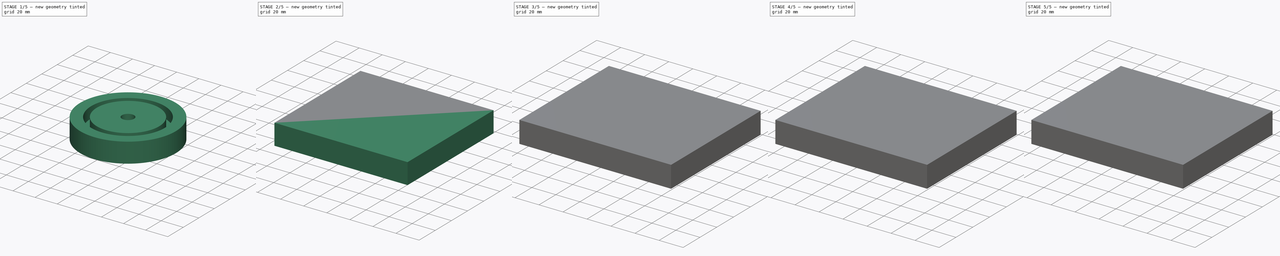
[diagram: build sequence overview — one tinted view per stage of 5, left to right]
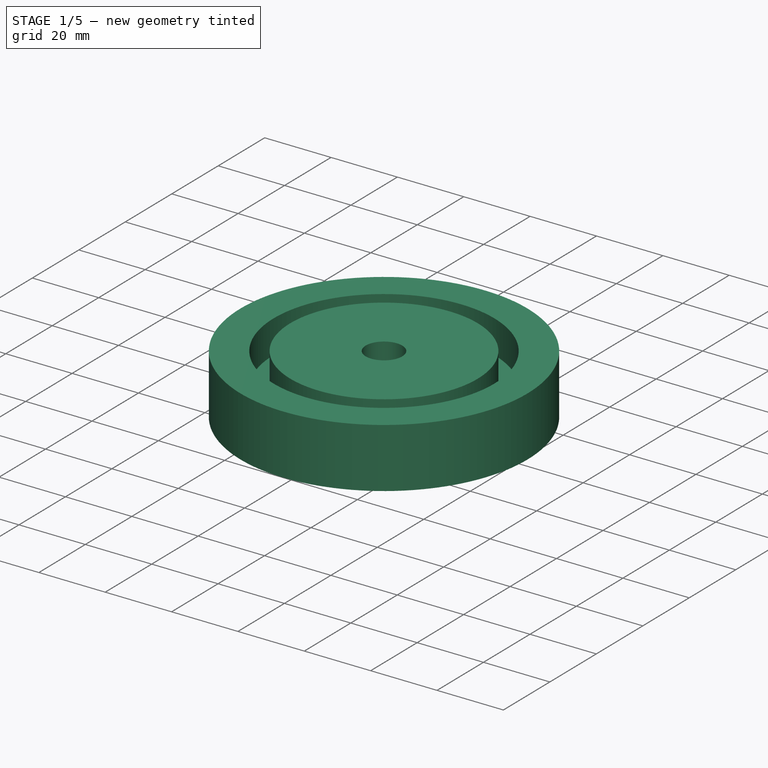
[diagram: stage 1 of 5 — iso view after this stage's code; geometry added in this stage tinted green]
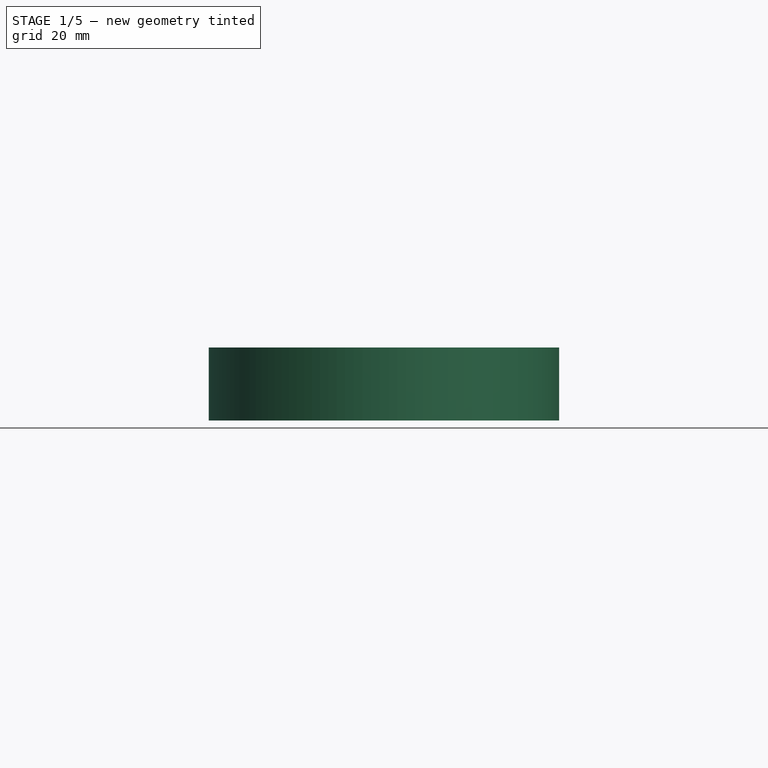
[diagram: stage 1 of 5 — front view after this stage's code; geometry added in this stage tinted green]
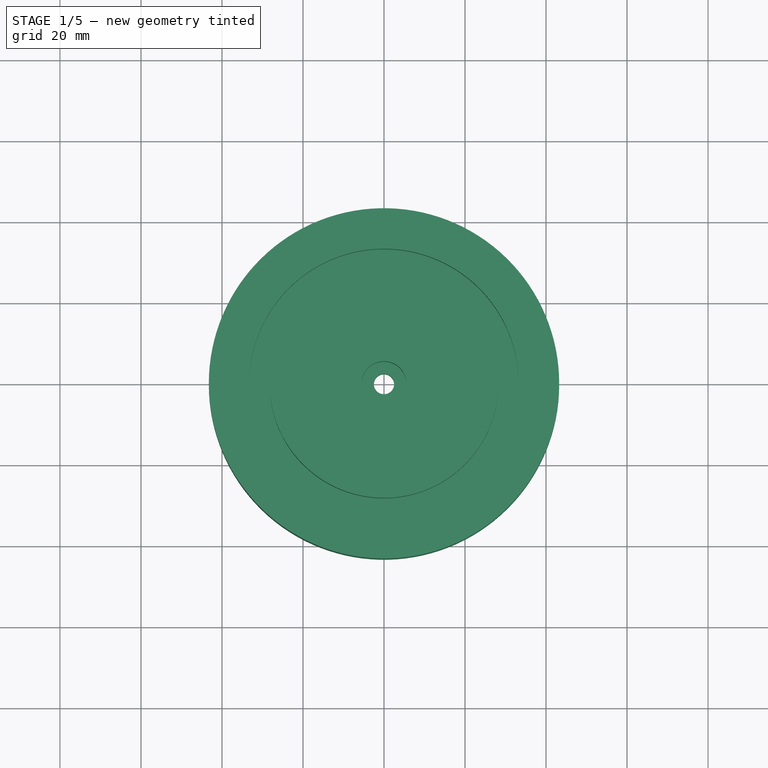
[diagram: stage 1 of 5 — top view after this stage's code; geometry added in this stage tinted green]
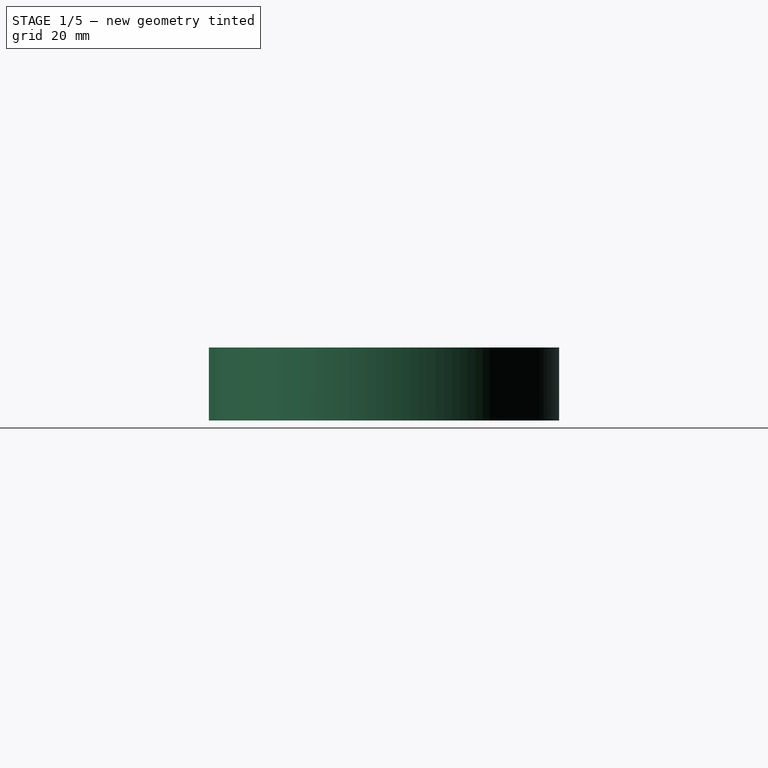
[diagram: stage 1 of 5 — right view after this stage's code; geometry added in this stage tinted green]
FCSTD DOCUMENT  (FreeCAD 0.19R20406 (Git))
Label: LampRim
License: Creative Commons Attribution-ShareAlike
LicenseURL: http://creativecommons.org/licenses/by-sa/4.0/
objects: Path::FeaturePython×20, Sketcher::SketchObject×9, Part::FeaturePython×8, PartDesign::Pocket×5, App::FeaturePython×4, App::DocumentObjectGroup×4, Path::FeatureCompoundPython×4, PartDesign::Pad×3, PartDesign::Body×3, PartDesign::PolarPattern×1, PartDesign::Hole×1
note: 42 computed .brp shape members not serialized (recipe doc carries the construction recipe); baked Part::Feature solids carry a one-line shape summary decoded from their .brp

FEATURE [Path::FeaturePython] T5__4FluteMetalMill4mm  label="T5: 4FluteMetalMill4mm"  # Path/CAM operation (typed FeaturePython)
  HorizFeed = 13.33
  HorizRapid = 33.33
  SpindleDir = 0
  SpindleSpeed = 18000
  ToolNumber = 5
  VertFeed = 3.33
  VertRapid = 33.33
  expr: VertRapid = SetupSheet001.VertRapid
  expr: HorizRapid = SetupSheet001.HorizRapid
FEATURE [Path::FeaturePython] Adaptive002  # Path/CAM operation (typed FeaturePython)
  Active = true
  Base = -> [Clone001]
  ClearanceHeight = 7
  CoolantMode = None
  EnableRotation = 0
  FinalDepth = -1
  FinishDepth = 0
  ForceInsideOut = false
  HelixAngle = 5
  HelixDiameterLimit = 0
  KeepToolDownRatio = 3
  LiftDistance = 0
  OpFinalDepth = 0
  OpStartDepth = 2
  OpStockZMax = 2
  OpStockZMin = -1
  OpToolDiameter = 4
  OperationType = 0
  SafeHeight = 5
  Side = 1
  StartDepth = 0
  StepDown = 0.5
  StepOver = 20
  StockToLeave = 0
  StopProcessing = false
  Stopped = false
  Tolerance = 0.1
  ToolController = -> T5__4FluteMetalMill4mm
  UseHelixArcs = false
  expr: StepDown = 0.5mm
  expr: FinalDepth = -1mm
  expr: StartDepth = 0mm
  expr: ClearanceHeight = OpStockZMax + SetupSheet001.ClearanceHeightOffset
  expr: SafeHeight = OpStockZMax + SetupSheet001.SafeHeightOffset
FEATURE [Path::FeatureCompoundPython] Operations001  # Path/CAM operation (typed FeaturePython)
  Group = -> [Adaptive002]
  UsePlacements = false
FEATURE [Path::FeaturePython] Job001  # Path/CAM operation (typed FeaturePython)
  Fixtures = G54
  GeometryTolerance = 0.01
  Model = -> Model001
  Operations = -> Operations001
  OrderOutputBy = 0
  PostProcessor = 1
  PostProcessorOutputFile = gcode/metal_lid_hole.ngc
  SetupSheet = -> SetupSheet001
  SplitOutput = false
  Stock = -> Stock002
  ToolController = -> [T5__4FluteMetalMill4mm]
FEATURE [Sketcher::SketchObject] Sketch005
  MapMode = 5
  Support = -> [XY_Plane002]
  expr: Constraints[1] = <<Outline_Plan>>.Constraints.OuterDiameter
  sketch-geometry (1):
    g0: Circle CenterX=0 CenterY=0 CenterZ=0 NormalX=0 NormalY=0 NormalZ=1 AngleXU=0 Radius=43.25
  constraints (2):
    c: Coincident(g0,g-1)
    c: Diameter(g0) = 86.5
FEATURE [PartDesign::Pad] Pad002
  Length = 18
  Length2 = 100
  Profile = -> Sketch005
  Type = 0
FEATURE [Sketcher::SketchObject] Sketch006
  MapMode = 5
  Placement = pos=(0,0,18) rot=(0,0,1;0rad)
  Support = -> [Pad002]
  expr: Constraints[2] = <<Outline_Plan>>.Constraints.InnerDiameter
  sketch-geometry (3):
    g0: Circle CenterX=0 CenterY=0 CenterZ=0 NormalX=0 NormalY=0 NormalZ=1 AngleXU=0 Radius=33.25
    g1: Circle CenterX=0 CenterY=0 CenterZ=0 NormalX=0 NormalY=0 NormalZ=1 AngleXU=0 Radius=28.25
    g2: LineSegment [constr] StartX=-33.25 StartY=0 StartZ=0 EndX=-28.25 EndY=0 EndZ=0
  constraints (8):
    c: Coincident(g0,g-1)
    c: Coincident(g1,g0)
    c: Diameter(g0) = 66.5
    c: PointOnObject(g2,g0)
    c: PointOnObject(g2,g1)
    c: Horizontal(g2)
    c: PointOnObject(g2,g-1)
    c: DistanceX(g2,g2) = 5
FEATURE [PartDesign::Pocket] Pocket003
  BaseFeature = -> Pad002
  Length = 10
  Length2 = 100
  Profile = -> Sketch006
  Type = 0
FEATURE [Sketcher::SketchObject] Sketch007
  MapMode = 5
  Placement = pos=(0,0,18) rot=(0,0,1;0rad)
  Support = -> [Pocket003]
  sketch-geometry (1):
    g0: Circle CenterX=0 CenterY=0 CenterZ=0 NormalX=0 NormalY=0 NormalZ=1 AngleXU=0 Radius=2.5
  constraints (2):
    c: Coincident(g0,g-1)
    c: Diameter(g0) = 5
FEATURE [PartDesign::Hole] Hole
  BaseFeature = -> Pocket003
  Depth = 25
  DepthType = 1
  Diameter = 5
  DrillPoint = 0
  DrillPointAngle = 118
  HoleCutCountersinkAngle = 90
  HoleCutDepth = 10
  HoleCutDiameter = 11
  HoleCutType = 1
  ModelActualThread = false
  Profile = -> Sketch007
  Tapered = false
  TaperedAngle = 90
  ThreadAngle = 0
  ThreadClass = 0
  ThreadCutOffInner = 0
  ThreadCutOffOuter = 0
  ThreadDirection = 0
  ThreadFit = 0
  ThreadPitch = 0
  ThreadSize = 0
  ThreadType = 0
  Threaded = false
FEATURE [Sketcher::SketchObject] Sketch008
  MapMode = 5
  Placement = pos=(0,0,0) rot=(1,0,0;3.14159rad)
  Support = -> [Hole]
  sketch-geometry (5):
    g0: LineSegment StartX=-20 StartY=20 StartZ=0 EndX=20 EndY=20 EndZ=0
    g1: LineSegment StartX=20 StartY=20 StartZ=0 EndX=20 EndY=-20 EndZ=0
    g2: LineSegment StartX=20 StartY=-20 StartZ=0 EndX=-20 EndY=-20 EndZ=0
    g3: LineSegment StartX=-20 StartY=-20 StartZ=0 EndX=-20 EndY=20 EndZ=0
    g4: Circle CenterX=0 CenterY=0 CenterZ=0 NormalX=0 NormalY=0 NormalZ=1 AngleXU=0 Radius=10
  constraints (12):
    c: Coincident(g0,g1)
    c: Coincident(g1,g2)
    c: Coincident(g2,g3)
    c: Coincident(g3,g0)
    c: Horizontal(g2)
    c: Vertical(g3)
    c: Symmetric(g0,g0,g-2)
    c: Symmetric(g1,g0,g-1)
    c: Equal(g0,g1)
    c: DistanceX(g0,g0) = 40
    c: Coincident(g4,g-1)
    c: Diameter(g4) = 20
FEATURE [PartDesign::Pocket] Pocket004
  BaseFeature = -> Hole
  Length = 1
  Length2 = 100
  Profile = -> Sketch008
  Type = 0
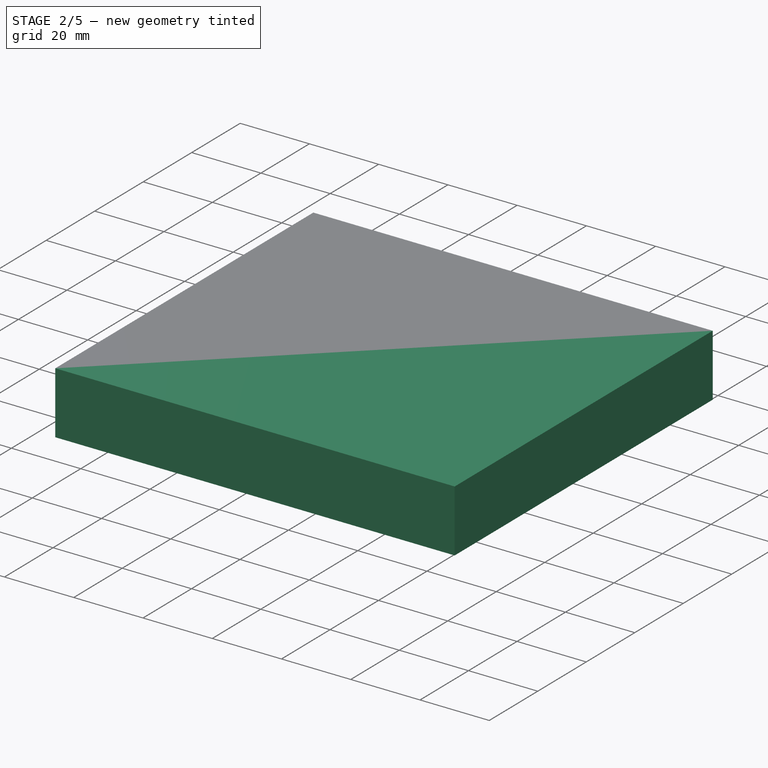
[diagram: stage 2 of 5 — iso view after this stage's code; geometry added in this stage tinted green]
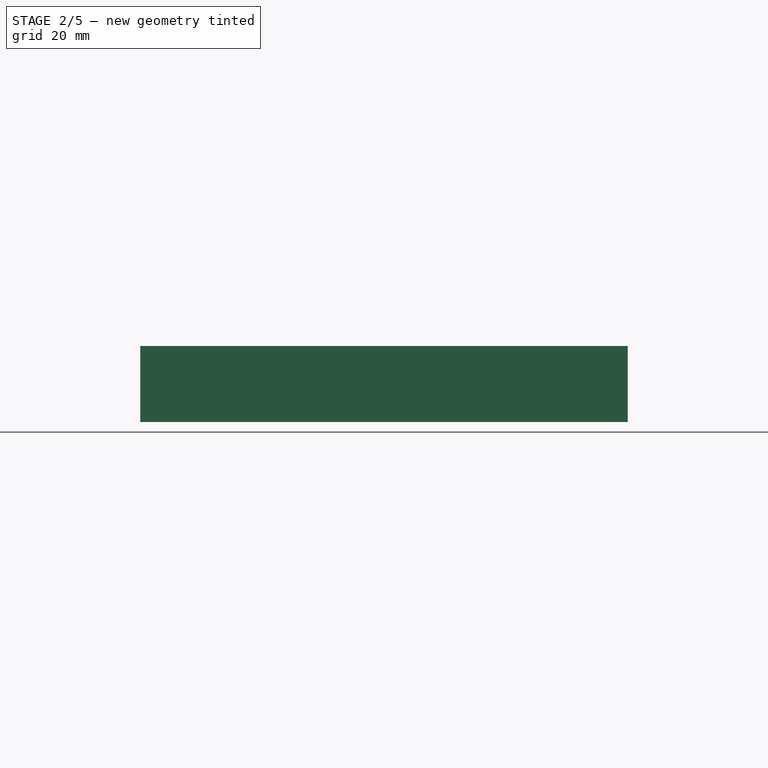
[diagram: stage 2 of 5 — front view after this stage's code; geometry added in this stage tinted green]
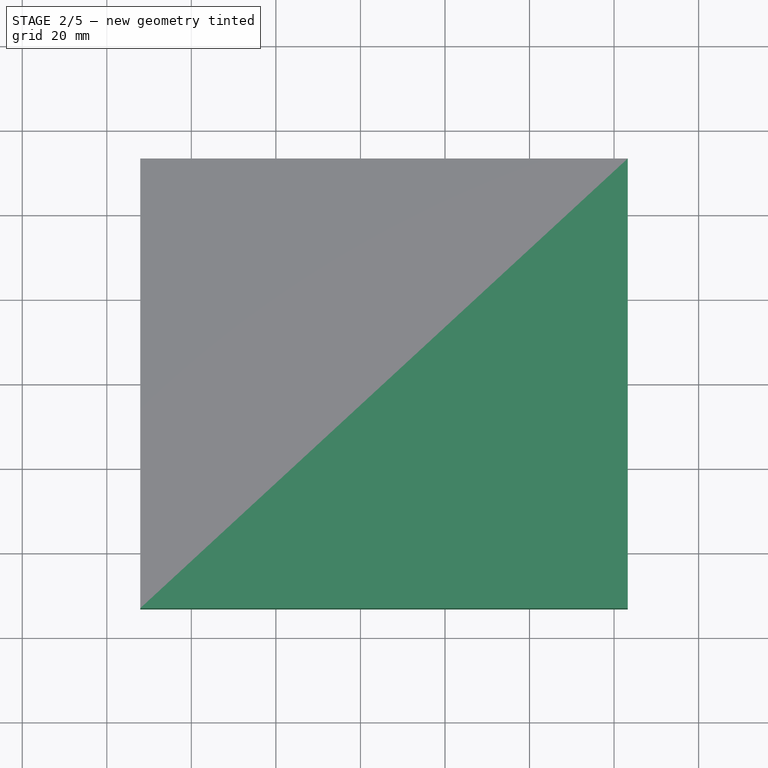
[diagram: stage 2 of 5 — top view after this stage's code; geometry added in this stage tinted green]
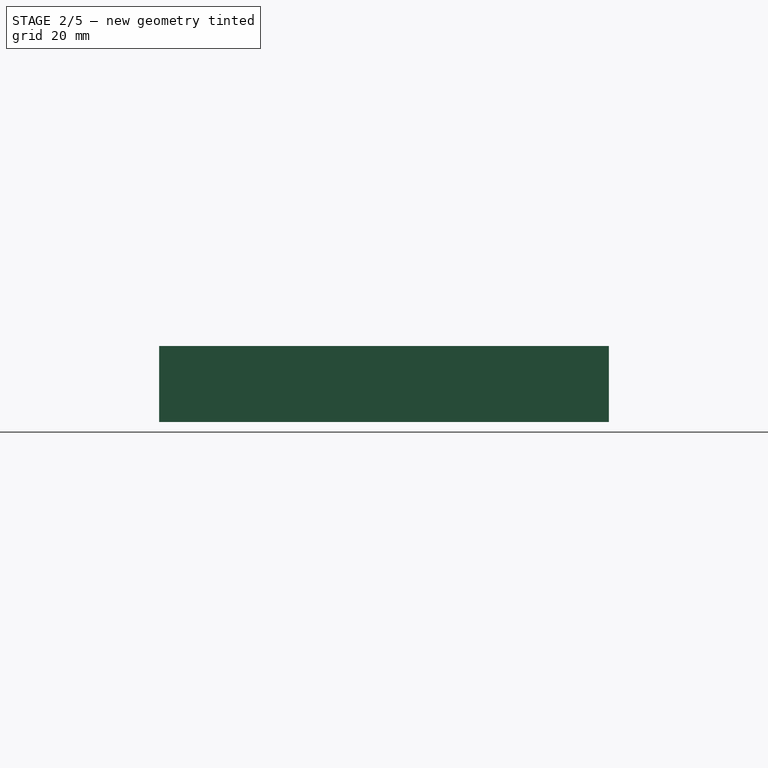
[diagram: stage 2 of 5 — right view after this stage's code; geometry added in this stage tinted green]
FEATURE [PartDesign::Body] Body002
  Group = -> [Sketch005,Pad002,Sketch006,Pocket003,Sketch007,Hole,Sketch008,Pocket004]
  Origin = -> Origin002
  Tip = -> Pocket004
FEATURE [App::FeaturePython] SetupSheet002  # Path/CAM operation (typed FeaturePython)
  ClearanceHeightExpression = OpStockZMax+SetupSheet002.ClearanceHeightOffset
  ClearanceHeightOffset = 5
  CoolantMode = 0
  CoolantModes = None | Flood | Mist
  FinalDepthExpression = OpFinalDepth
  HorizRapid = 66.67
  SafeHeightExpression = OpStockZMax+SetupSheet002.SafeHeightOffset
  SafeHeightOffset = 3
  StartDepthExpression = OpStartDepth
  StepDownExpression = OpToolDiameter
  VertRapid = 16.66
FEATURE [Part::FeaturePython] Clone002  label="Model-Body002"  # Draft clone (typed FeaturePython)
  AttacherType = Attacher::AttachEngine3D
  Fuse = false
  Objects = -> [Body002]
  PathResource = Model
  Scale = (1,1,1)
FEATURE [Path::FeaturePython] Adaptive003  # Path/CAM operation (typed FeaturePython)
  Active = false
  Base = -> [Clone002]
  ClearanceHeight = 23
  CoolantMode = None
  EnableRotation = 0
  FinalDepth = 8
  FinishDepth = 0
  ForceInsideOut = false
  HelixAngle = 5
  HelixDiameterLimit = 0
  KeepToolDownRatio = 3
  LiftDistance = 0
  OpFinalDepth = 8
  OpStartDepth = 18
  OpStockZMax = 18
  OpStockZMin = 0
  OpToolDiameter = 3
  OperationType = 0
  SafeHeight = 21
  Side = 1
  StartDepth = 18
  StepDown = 3
  StepOver = 20
  StockToLeave = 0
  StopProcessing = false
  Stopped = false
  Tolerance = 0.1
  ToolController = -> T6__2FluteWoodMill001001
  UseHelixArcs = false
  expr: StartDepth = OpStartDepth
  expr: FinalDepth = OpFinalDepth
  expr: StepDown = OpToolDiameter
  expr: SafeHeight = OpStockZMax + SetupSheet002.SafeHeightOffset
  expr: ClearanceHeight = OpStockZMax + SetupSheet002.ClearanceHeightOffset
FEATURE [Path::FeaturePython] Helix  # Path/CAM operation (typed FeaturePython)
  Active = true
  Base = -> [Clone002]
  ClearanceHeight = 23
  CoolantMode = None
  Direction = 0
  Disabled = Clone002.Face1 | Clone002.Face8 | Clone002.Face11 | Clone002.Face12 | Clone002.Face16
  EnableRotation = 0
  FinalDepth = 0
  OpFinalDepth = 0
  OpStartDepth = 18
  OpStockZMax = 18
  OpStockZMin = 0
  OpToolDiameter = 3
  SafeHeight = 21
  StartDepth = 18
  StartRadius = 0
  StartSide = 0
  StepDown = 0.5
  StepOver = 100
  ToolController = -> T6__2FluteWoodMill001001
  expr: StartDepth = OpStartDepth
  expr: FinalDepth = OpFinalDepth
  expr: StepDown = OpToolDiameter / 6
  expr: SafeHeight = OpStockZMax + SetupSheet002.SafeHeightOffset
  expr: ClearanceHeight = OpStockZMax + SetupSheet002.ClearanceHeightOffset
FEATURE [Path::FeaturePython] Helix001  # Path/CAM operation (typed FeaturePython)
  Active = true
  Base = -> [Clone002]
  ClearanceHeight = 23
  CoolantMode = None
  Direction = 0
  EnableRotation = 0
  FinalDepth = 8
  OpFinalDepth = 8
  OpStartDepth = 18
  OpStockZMax = 18
  OpStockZMin = 0
  OpToolDiameter = 3
  SafeHeight = 21
  StartDepth = 18
  StartRadius = 0
  StartSide = 0
  StepDown = 0.5
  StepOver = 100
  ToolController = -> T6__2FluteWoodMill001001
  expr: StartDepth = OpStartDepth
  expr: FinalDepth = OpFinalDepth
  expr: StepDown = OpToolDiameter / 6
  expr: SafeHeight = OpStockZMax + SetupSheet002.SafeHeightOffset
  expr: ClearanceHeight = OpStockZMax + SetupSheet002.ClearanceHeightOffset
FEATURE [Path::FeaturePython] Pocket_Shape001  # Path/CAM operation (typed FeaturePython)
  Active = true
  AreaParams:
    Tolerance = 1e-07
    FitArcs = True
    Simplify = False
    CleanDistance = 0.0
    Accuracy = 0.01
    Unit = 1.0
    MinArcPoints = 4
    MaxArcPoints = 100
    ClipperScale = 10000000.0
    Fill = 0
    Coplanar = 0
    Reorient = True
    Outline = False
    Explode = False
    OpenMode = 0
    Deflection = 0.01
    SubjectFill = 0
    ClipFill = 0
    Offset = 0.0
    ExtraPass = 0
    Stepover = 0.0
    LastStepover = 0.0
    JoinType = 0
    EndType = 0
    MiterLimit = 2.0
    RoundPrecision = 0.0
    PocketMode = 2
    ToolRadius = 1.5
    PocketExtraOffset = 0.0
    PocketStepover = 3.0
    PocketLastStepover = 0.0
    FromCenter = True
    Angle = 45.0
    AngleShift = 0.0
    Shift = 0.0
    Thicken = False
    SectionCount = -1
    Stepdown = 1.0
    SectionOffset = 0.0
    SectionTolerance = 1e-06
    SectionMode = 2
    Project = False
  AttemptInverseAngle = true
  Base = -> [Clone002]
  ClearanceHeight = 23
  CoolantMode = None
  CutMode = 0
  EnableRotation = 0
  ExtensionCorners = true
  ExtensionLengthDefault = 1.5
  ExtraOffset = 0
  FinalDepth = 8
  FinishDepth = 0
  InverseAngle = false
  KeepToolDown = false
  LimitDepthToFace = true
  MinTravel = false
  OffsetPattern = 1
  OpFinalDepth = 8
  OpStartDepth = 18
  OpStockZMax = 18
  OpStockZMin = 0
  OpToolDiameter = 3
  PathParams = {'orientation': 1, 'feedrate': 33.33, 'feedrate_v': 16.66, 'verbose': True, 'resume_height': 21.0, 'retraction': 23.0, 'return_end': True, 'preamble': False}
  ReverseDirection = false
  SafeHeight = 21
  StartAt = 0
  StartDepth = 18
  StartPoint = (0,0,0)
  StepDown = 0.5
  StepOver = 100
  ToolController = -> T6__2FluteWoodMill001001
  UseOutline = false
  UseStartPoint = false
  ZigZagAngle = 45
  expr: StartDepth = OpStartDepth
  expr: FinalDepth = OpFinalDepth
  expr: StepDown = OpToolDiameter / 6
  expr: SafeHeight = OpStockZMax + SetupSheet002.SafeHeightOffset
  expr: ClearanceHeight = OpStockZMax + SetupSheet002.ClearanceHeightOffset
  expr: ExtensionLengthDefault = OpToolDiameter / 2
FEATURE [Path::FeatureCompoundPython] Operations002  # Path/CAM operation (typed FeaturePython)
  Group = -> [Helix,Helix001,Adaptive003,Pocket_Shape001]
  UsePlacements = false
FEATURE [Path::FeaturePython] Job002  label="LidHolder_Front_Job"  # Path/CAM operation (typed FeaturePython)
  Fixtures = G54
  GeometryTolerance = 0.01
  Model = -> Model002
  Operations = -> Operations002
  OrderOutputBy = 2
  PostProcessor = 1
  PostProcessorOutputFile = gcode/lid_holder_front.nc
  SetupSheet = -> SetupSheet002
  SplitOutput = false
  Stock = -> Stock003
  ToolController = -> [T6__2FluteWoodMill001001]
FEATURE [App::FeaturePython] SetupSheet003  # Path/CAM operation (typed FeaturePython)
  ClearanceHeightExpression = OpStockZMax+SetupSheet003.ClearanceHeightOffset
  ClearanceHeightOffset = 5
  CoolantMode = 0
  CoolantModes = None | Flood | Mist
  FinalDepthExpression = OpFinalDepth
  HorizRapid = 66.67
  SafeHeightExpression = OpStockZMax+SetupSheet003.SafeHeightOffset
  SafeHeightOffset = 3
  StartDepthExpression = OpStartDepth
  StepDownExpression = OpToolDiameter
  VertRapid = 33.33
FEATURE [Part::FeaturePython] Clone003  label="Model-Model-Body002"  # Draft clone (typed FeaturePython)
  AttacherType = Attacher::AttachEngine3D
  Fuse = false
  Objects = -> [Clone002]
  PathResource = Model
  Placement = pos=(0,0,18) rot=(1,0,0;3.14159rad)
  Scale = (1,1,1)
FEATURE [App::DocumentObjectGroup] Model003
  Group = -> [Clone003]
FEATURE [Path::FeaturePython] T6__2FluteWoodMill001002  label="T6: 2FluteWoodMill002"  # Path/CAM operation (typed FeaturePython)
  HorizFeed = 33.33
  HorizRapid = 66.67
  SpindleDir = 0
  SpindleSpeed = 12000
  ToolNumber = 6
  VertFeed = 16.66
  VertRapid = 33.33
  expr: VertRapid = SetupSheet003.VertRapid
  expr: HorizRapid = SetupSheet003.HorizRapid
FEATURE [Part::FeaturePython] Stock004  # WARN: FeaturePython — macro-defined, semantics opaque (R4)
  Base = -> Model003
  ExtXneg = 9
  ExtXpos = 20
  ExtYneg = 10
  ExtYpos = 10
  ExtZneg = 0
  ExtZpos = 0
  Placement = pos=(-43.0942,-43.211,0) rot=(0,0,1;0rad)
  StockType = FromBase
FEATURE [Path::FeaturePython] Adaptive004  # Path/CAM operation (typed FeaturePython)
  Active = true
  Base = -> [Clone003]
  ClearanceHeight = 23
  CoolantMode = None
  EnableRotation = 0
  FinalDepth = 17
  FinishDepth = 0
  ForceInsideOut = false
  HelixAngle = 5
  HelixDiameterLimit = 0
  KeepToolDownRatio = 3
  LiftDistance = 0
  OpFinalDepth = 17
  OpStartDepth = 18
  OpStockZMax = 18
  OpStockZMin = 0
  OpToolDiameter = 3
  OperationType = 0
  SafeHeight = 21
  Side = 1
  StartDepth = 18
  StepDown = 3
  StepOver = 20
  StockToLeave = 0
  StopProcessing = false
  Stopped = false
  Tolerance = 0.1
  ToolController = -> T6__2FluteWoodMill001002
  UseHelixArcs = false
  expr: StartDepth = OpStartDepth
  expr: FinalDepth = OpFinalDepth
  expr: StepDown = OpToolDiameter
  expr: SafeHeight = OpStockZMax + SetupSheet003.SafeHeightOffset
  expr: ClearanceHeight = OpStockZMax + SetupSheet003.ClearanceHeightOffset
FEATURE [Path::FeatureCompoundPython] Operations003  # Path/CAM operation (typed FeaturePython)
  Group = -> [Adaptive004]
  UsePlacements = false
FEATURE [Path::FeaturePython] Job003  # Path/CAM operation (typed FeaturePython)
  Fixtures = G54
  GeometryTolerance = 0.01
  Model = -> Model003
  Operations = -> Operations003
  OrderOutputBy = 0
  PostProcessor = 1
  PostProcessorOutputFile = gcode/left_leg.nc
  SetupSheet = -> SetupSheet003
  SplitOutput = false
  Stock = -> Stock004
  ToolController = -> [T6__2FluteWoodMill001002]
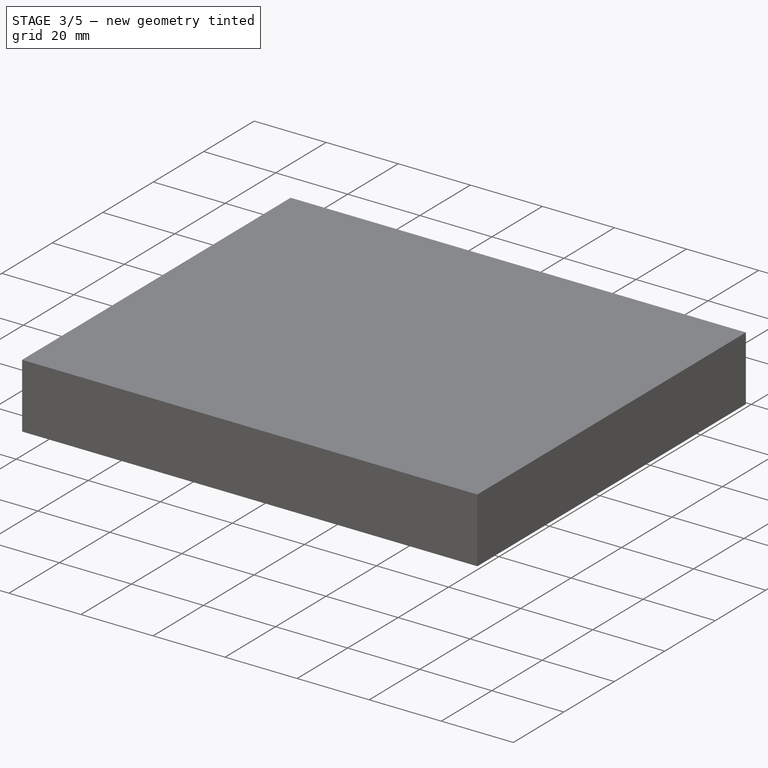
[diagram: stage 3 of 5 — iso view after this stage's code; geometry added in this stage tinted green]
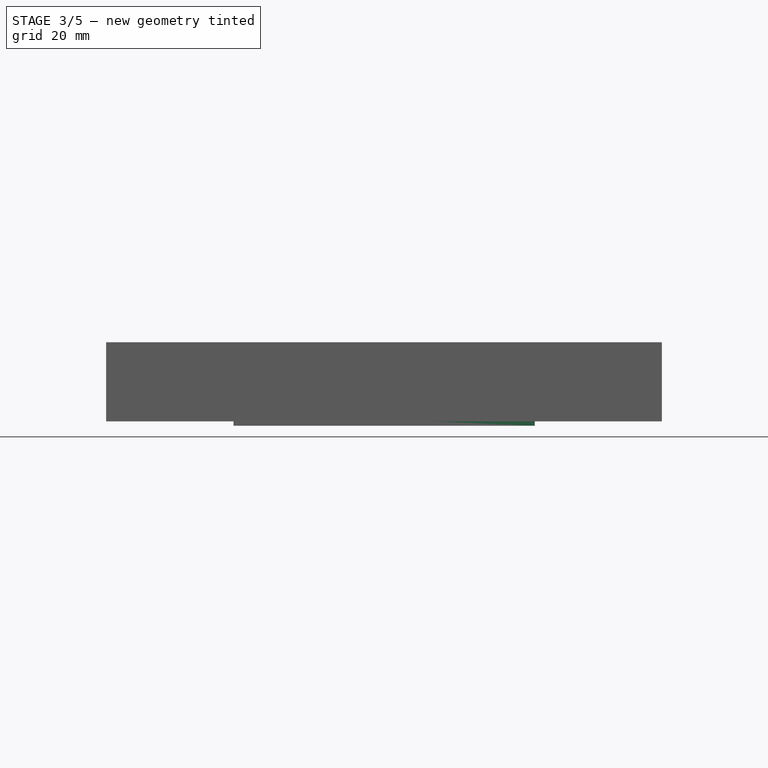
[diagram: stage 3 of 5 — front view after this stage's code; geometry added in this stage tinted green]
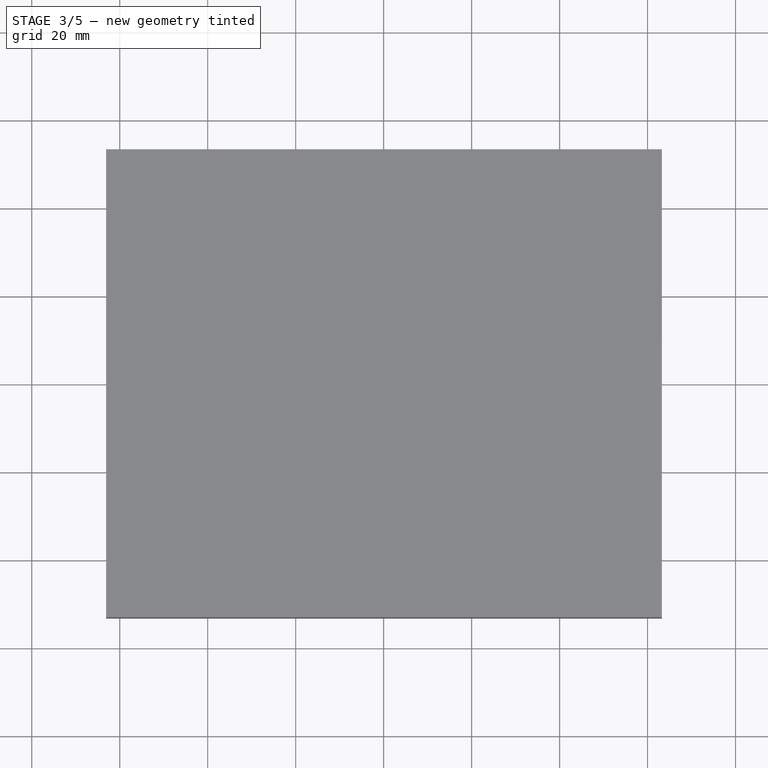
[diagram: stage 3 of 5 — top view after this stage's code; geometry added in this stage tinted green]
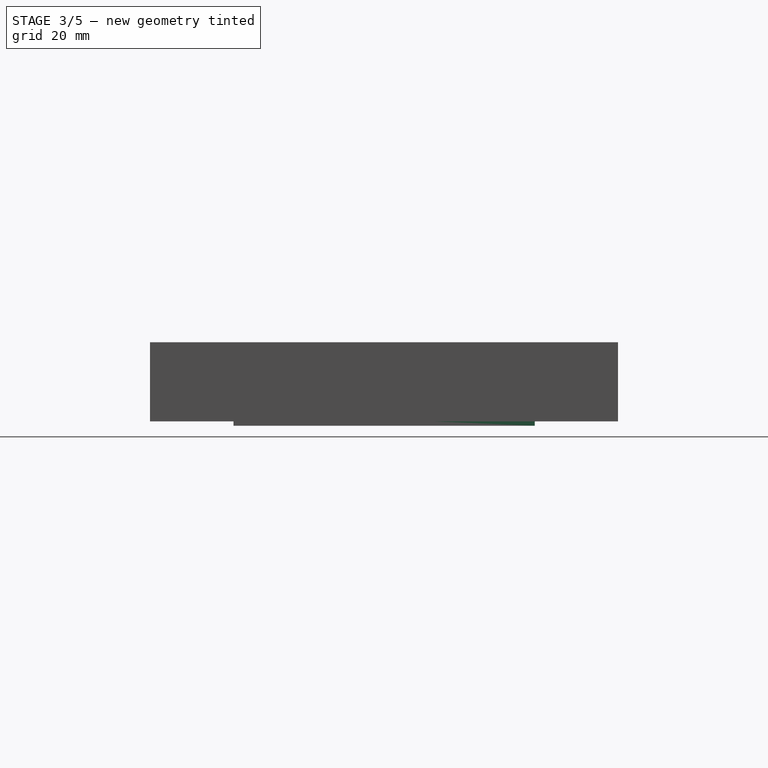
[diagram: stage 3 of 5 — right view after this stage's code; geometry added in this stage tinted green]
FEATURE [Path::FeaturePython] Adaptive  # Path/CAM operation (typed FeaturePython)
  Active = true
  Base = -> [Clone]
  ClearanceHeight = 23
  CoolantMode = None
  EnableRotation = 0
  FinalDepth = 0
  FinishDepth = 0
  ForceInsideOut = false
  HelixAngle = 5
  HelixDiameterLimit = 0
  KeepToolDownRatio = 3
  LiftDistance = 0
  OpFinalDepth = 0
  OpStartDepth = 18
  OpStockZMax = 18
  OpStockZMin = 0
  OpToolDiameter = 3
  OperationType = 0
  SafeHeight = 21
  Side = 1
  StartDepth = 18
  StepDown = 3
  StepOver = 33
  StockToLeave = 0
  StopProcessing = false
  Stopped = false
  Tolerance = 0.1
  ToolController = -> T6__2FluteWoodMill001
  UseHelixArcs = false
  expr: FinishDepth = 0mm
  expr: ClearanceHeight = OpStockZMax + SetupSheet.ClearanceHeightOffset
  expr: SafeHeight = OpStockZMax + SetupSheet.SafeHeightOffset
  expr: StepDown = OpToolDiameter
  expr: FinalDepth = OpFinalDepth
  expr: StartDepth = OpStartDepth
FEATURE [Path::FeaturePython] Adaptive001  # Path/CAM operation (typed FeaturePython)
  Active = true
  Base = -> [Clone]
  ClearanceHeight = 23
  CoolantMode = None
  EnableRotation = 0
  FinalDepth = 11
  FinishDepth = 0
  ForceInsideOut = false
  HelixAngle = 5
  HelixDiameterLimit = 0
  KeepToolDownRatio = 3
  LiftDistance = 0
  OpFinalDepth = 11
  OpStartDepth = 18
  OpStockZMax = 18
  OpStockZMin = 0
  OpToolDiameter = 3
  OperationType = 0
  SafeHeight = 21
  Side = 1
  StartDepth = 18
  StepDown = 3
  StepOver = 33
  StockToLeave = 0
  StopProcessing = false
  Stopped = false
  Tolerance = 0.1
  ToolController = -> T6__2FluteWoodMill001
  UseHelixArcs = false
  expr: FinishDepth = 0mm
  expr: StartDepth = OpStartDepth
  expr: FinalDepth = OpFinalDepth
  expr: StepDown = OpToolDiameter
  expr: SafeHeight = OpStockZMax + SetupSheet.SafeHeightOffset
  expr: ClearanceHeight = OpStockZMax + SetupSheet.ClearanceHeightOffset
FEATURE [Path::FeaturePython] Pocket_Shape  # Path/CAM operation (typed FeaturePython)
  Active = true
  AreaParams:
    Tolerance = 1e-07
    FitArcs = True
    Simplify = False
    CleanDistance = 0.0
    Accuracy = 0.01
    Unit = 1.0
    MinArcPoints = 4
    MaxArcPoints = 100
    ClipperScale = 10000000.0
    Fill = 0
    Coplanar = 0
    Reorient = True
    Outline = False
    Explode = False
    OpenMode = 0
    Deflection = 0.01
    SubjectFill = 0
    ClipFill = 0
    Offset = 0.0
    ExtraPass = 0
    Stepover = 0.0
    LastStepover = 0.0
    JoinType = 0
    EndType = 0
    MiterLimit = 2.0
    RoundPrecision = 0.0
    PocketMode = 2
    ToolRadius = 1.5
    PocketExtraOffset = 0.0
    PocketStepover = 2.25
    PocketLastStepover = 0.0
    FromCenter = True
    Angle = 45.0
    AngleShift = 0.0
    Shift = 0.0
    Thicken = False
    SectionCount = -1
    Stepdown = 1.0
    SectionOffset = 0.0
    SectionTolerance = 1e-06
    SectionMode = 2
    Project = False
  AttemptInverseAngle = true
  Base = -> [Clone]
  ClearanceHeight = 23
  CoolantMode = None
  CutMode = 1
  EnableRotation = 0
  ExtensionCorners = true
  ExtensionLengthDefault = 1.5
  ExtraOffset = 0
  FinalDepth = 6
  FinishDepth = 0
  InverseAngle = false
  KeepToolDown = false
  LimitDepthToFace = true
  MinTravel = false
  OffsetPattern = 1
  OpFinalDepth = 6
  OpStartDepth = 18
  OpStockZMax = 18
  OpStockZMin = 0
  OpToolDiameter = 3
  PathParams = {'orientation': 0, 'feedrate': 33.33, 'feedrate_v': 16.66, 'verbose': True, 'resume_height': 21.0, 'retraction': 23.0, 'return_end': True, 'preamble': False}
  ReverseDirection = false
  SafeHeight = 21
  StartAt = 0
  StartDepth = 11
  StartPoint = (0,0,0)
  StepDown = 0.5
  StepOver = 75
  ToolController = -> T4__2FluteWoodMill
  UseOutline = false
  UseStartPoint = false
  ZigZagAngle = 45
  expr: ExtensionLengthDefault = OpToolDiameter / 2
  expr: ClearanceHeight = OpStockZMax + SetupSheet.ClearanceHeightOffset
  expr: SafeHeight = OpStockZMax + SetupSheet.SafeHeightOffset
  expr: StepDown = OpToolDiameter / 6
  expr: FinalDepth = OpFinalDepth
  expr: StartDepth = OpStartDepth - 7mm
FEATURE [Path::FeatureCompoundPython] Operations  # Path/CAM operation (typed FeaturePython)
  Group = -> [Adaptive,Adaptive001,Pocket_Shape,DressupTag]
  UsePlacements = false
FEATURE [Path::FeaturePython] Job  # Path/CAM operation (typed FeaturePython)
  Fixtures = G54
  GeometryTolerance = 0.01
  Model = -> Model
  Operations = -> Operations
  OrderOutputBy = 2
  PostProcessor = 1
  PostProcessorOutputFile = gcode/lamp_rim.nc
  SetupSheet = -> SetupSheet
  SplitOutput = false
  Stock = -> Stock
  ToolController = -> [T6__2FluteWoodMill001,T4__2FluteWoodMill]
FEATURE [Sketcher::SketchObject] Sketch004
  MapMode = 5
  Support = -> [XY_Plane001]
  expr: Constraints[1] = <<Outline_Plan>>.Constraints.InnerDiameter
  sketch-geometry (2):
    g0: Circle CenterX=0 CenterY=0 CenterZ=0 NormalX=0 NormalY=0 NormalZ=1 AngleXU=0 Radius=33.25
    g1: Circle CenterX=0 CenterY=0 CenterZ=0 NormalX=0 NormalY=0 NormalZ=1 AngleXU=0 Radius=10.25
  constraints (4):
    c: Coincident(g0,g-1)
    c: Diameter(g0) = 66.5
    c: Coincident(g1,g0)
    c: Diameter(g1) = 20.5
FEATURE [PartDesign::Pad] Pad001
  Length = 1
  Length2 = 100
  Profile = -> Sketch004
  Type = 0
FEATURE [PartDesign::Body] Body001  label="JarLid_Hole"
  Group = -> [Sketch004,Pad001]
  Origin = -> Origin001
  Tip = -> Pad001
FEATURE [App::FeaturePython] SetupSheet001  # Path/CAM operation (typed FeaturePython)
  ClearanceHeightExpression = OpStockZMax+SetupSheet001.ClearanceHeightOffset
  ClearanceHeightOffset = 5
  CoolantMode = 0
  CoolantModes = None | Flood | Mist
  FinalDepthExpression = -0.2mm
  HorizRapid = 33.33
  SafeHeightExpression = OpStockZMax+SetupSheet001.SafeHeightOffset
  SafeHeightOffset = 3
  StartDepthExpression = 3.2mm
  StepDownExpression = 0.3
  VertRapid = 33.33
FEATURE [Part::FeaturePython] Clone001  label="Model-Body001"  # Draft clone (typed FeaturePython)
  AttacherType = Attacher::AttachEngine3D
  Fuse = false
  Objects = -> [Body001]
  PathResource = Model
  Scale = (1,1,1)
FEATURE [App::DocumentObjectGroup] Model001
  Group = -> [Clone001]
FEATURE [Part::FeaturePython] Stock002  # WARN: FeaturePython — macro-defined, semantics opaque (R4)
  Base = -> Model001
  ExtXneg = 1
  ExtXpos = 1
  ExtYneg = 1
  ExtYpos = 1
  ExtZneg = 1
  ExtZpos = 1
  Placement = pos=(-33.1422,-33.223,0) rot=(0,0,1;0rad)
  StockType = FromBase
FEATURE [App::DocumentObjectGroup] Model002
  Group = -> [Clone002]
FEATURE [Path::FeaturePython] T6__2FluteWoodMill001001  label="T6: 2FluteWoodMill001"  # Path/CAM operation (typed FeaturePython)
  HorizFeed = 33.33
  HorizRapid = 66.67
  SpindleDir = 0
  SpindleSpeed = 12000
  ToolNumber = 6
  VertFeed = 16.66
  VertRapid = 16.66
  expr: VertRapid = SetupSheet002.VertRapid
  expr: HorizRapid = SetupSheet002.HorizRapid
FEATURE [Part::FeaturePython] Stock003  # WARN: FeaturePython — macro-defined, semantics opaque (R4)
  Base = -> Model002
  ExtXneg = 20
  ExtXpos = 20
  ExtYneg = 10
  ExtYpos = 10
  ExtZneg = 0
  ExtZpos = 0
  Placement = pos=(-43.0942,-43.211,0) rot=(0,0,1;0rad)
  StockType = FromBase
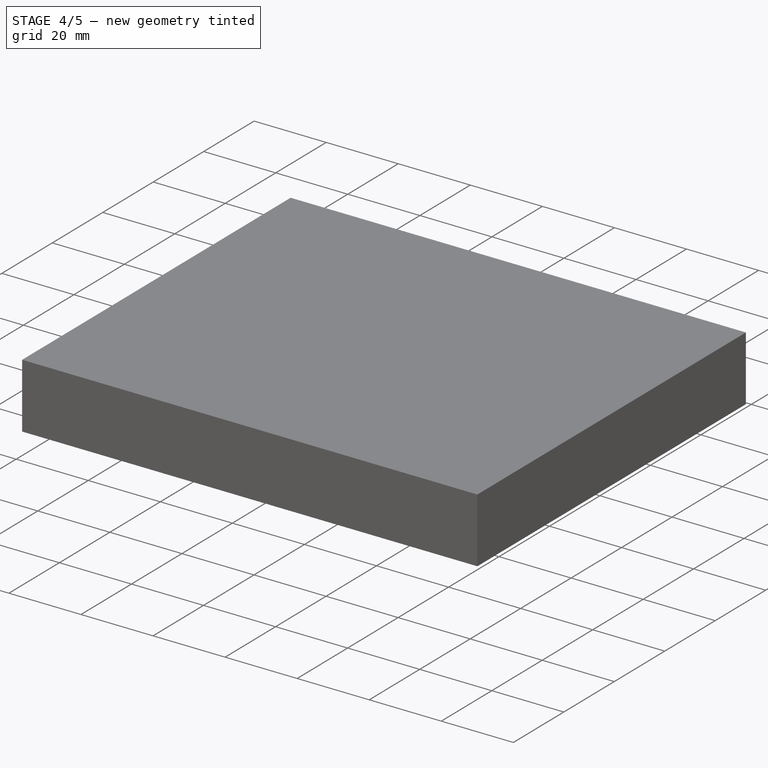
[diagram: stage 4 of 5 — iso view after this stage's code; geometry added in this stage tinted green]
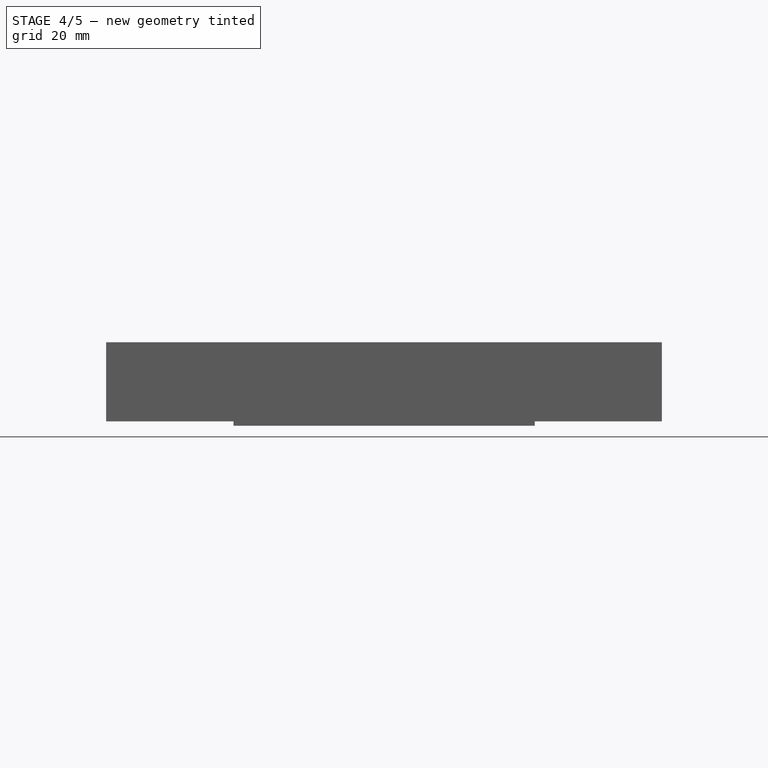
[diagram: stage 4 of 5 — front view after this stage's code; geometry added in this stage tinted green]
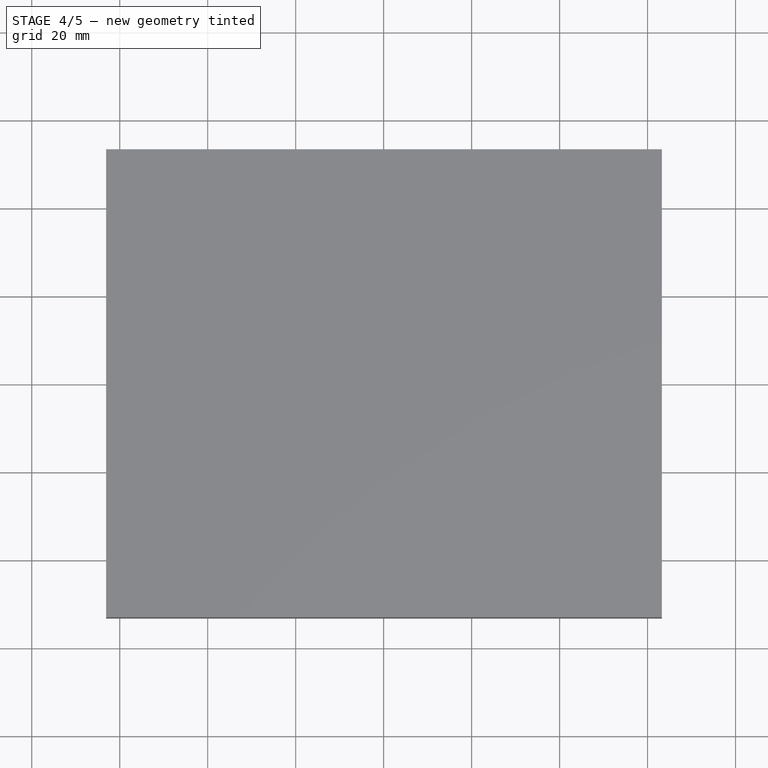
[diagram: stage 4 of 5 — top view after this stage's code; geometry added in this stage tinted green]
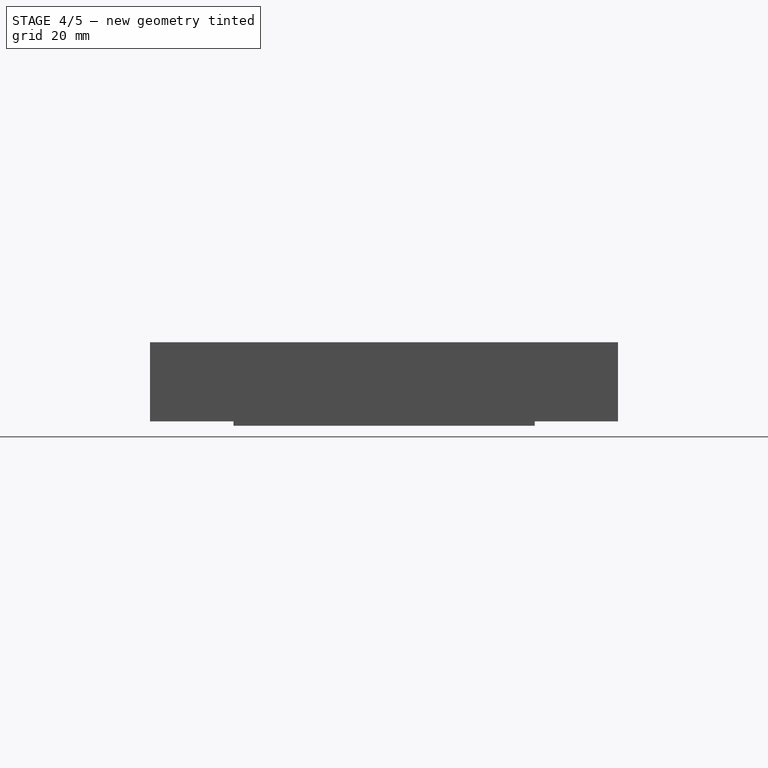
[diagram: stage 4 of 5 — right view after this stage's code; geometry added in this stage tinted green]
FEATURE [Sketcher::SketchObject] Sketch  label="Outline_Plan"
  MapMode = 5
  Support = -> [XY_Plane]
  sketch-geometry (3):
    g0: Circle CenterX=0 CenterY=0 CenterZ=0 NormalX=0 NormalY=0 NormalZ=1 AngleXU=0 Radius=43.25
    g1: Circle [constr] CenterX=0 CenterY=0 CenterZ=0 NormalX=0 NormalY=0 NormalZ=1 AngleXU=0 Radius=33.25
    g2: LineSegment [constr] StartX=-33.25 StartY=2e-15 StartZ=0 EndX=-43.25 EndY=2e-15 EndZ=0
  constraints (8):
    c: Coincident(g0,g-1)
    c: Coincident(g1,g0)
    c: Diameter(g1) = 66.5  'InnerDiameter'
    c: PointOnObject(g2,g0)
    c: Horizontal(g2)
    c: Perpendicular(g2,g1) = 1.5708
    c: DistanceX(g2,g2) = 10
    c: Diameter(g0) = 86.5  'OuterDiameter'
FEATURE [PartDesign::Pad] Pad
  Length = 18
  Length2 = 100
  Profile = -> Sketch
  Type = 0
FEATURE [Sketcher::SketchObject] Sketch001
  ExternalGeometry = -> [Pad]
  MapMode = 5
  Placement = pos=(0,0,18) rot=(0,0,1;0rad)
  Support = -> [Pad]
  expr: Constraints[1] = <<Outline_Plan>>.Constraints.InnerDiameter
  sketch-geometry (1):
    g0: Circle CenterX=0 CenterY=0 CenterZ=0 NormalX=0 NormalY=0 NormalZ=1 AngleXU=0 Radius=33.25
  constraints (2):
    c: Coincident(g0,g-1)
    c: Diameter(g0) = 66.5
FEATURE [PartDesign::Pocket] Pocket
  BaseFeature = -> Pad
  Length = 7
  Length2 = 100
  Profile = -> Sketch001
  Type = 0
FEATURE [Sketcher::SketchObject] Sketch002
  MapMode = 5
  Placement = pos=(0,0,11) rot=(0,0,1;0rad)
  Support = -> [Pocket]
  sketch-geometry (1):
    g0: Circle CenterX=0 CenterY=0 CenterZ=0 NormalX=0 NormalY=0 NormalZ=1 AngleXU=0 Radius=13.5
  constraints (2):
    c: Coincident(g0,g-1)
    c: Diameter(g0) = 27
FEATURE [PartDesign::Pocket] Pocket001
  BaseFeature = -> Pocket
  Length = 5
  Length2 = 100
  Profile = -> Sketch002
  Type = 1
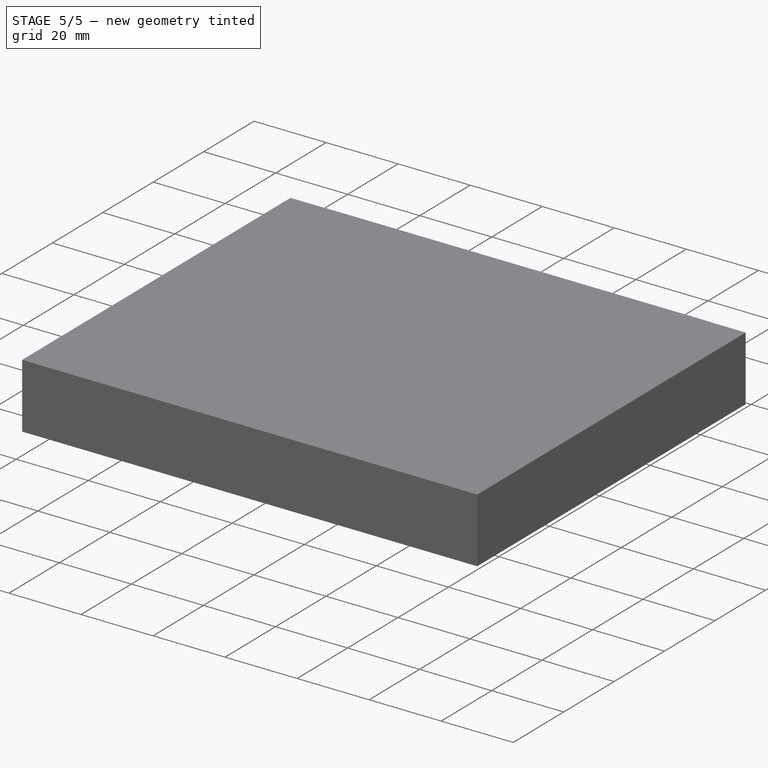
[diagram: stage 5 of 5 — iso view after this stage's code; geometry added in this stage tinted green]
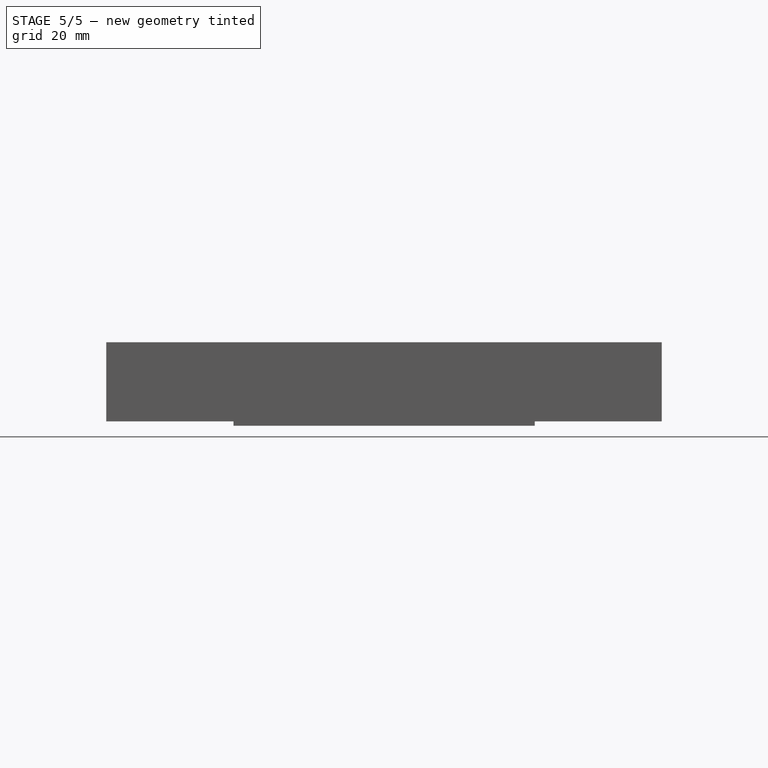
[diagram: stage 5 of 5 — front view after this stage's code; geometry added in this stage tinted green]
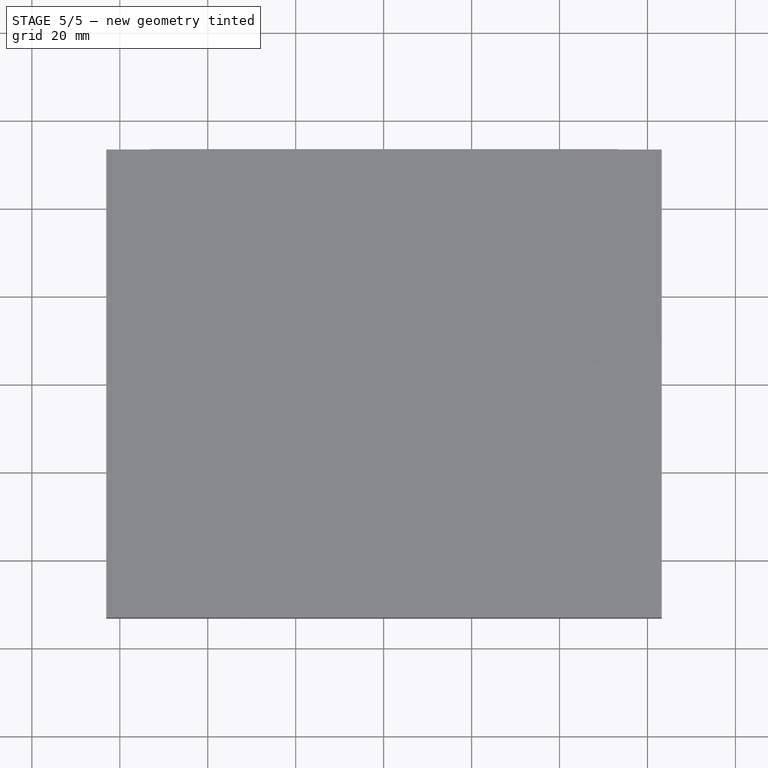
[diagram: stage 5 of 5 — top view after this stage's code; geometry added in this stage tinted green]
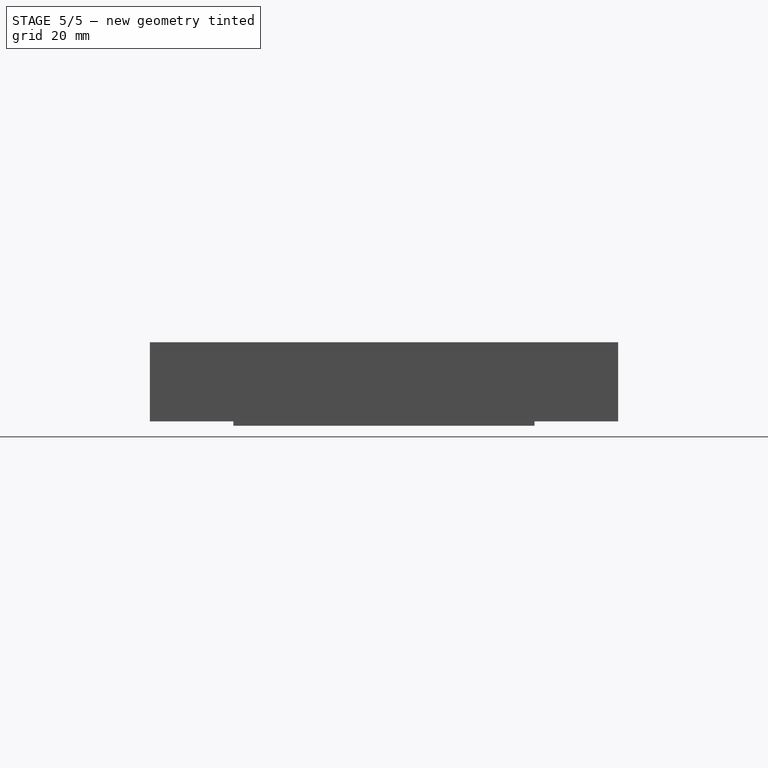
[diagram: stage 5 of 5 — right view after this stage's code; geometry added in this stage tinted green]
FEATURE [App::FeaturePython] SetupSheet  # Path/CAM operation (typed FeaturePython)
  ClearanceHeightExpression = OpStockZMax+SetupSheet.ClearanceHeightOffset
  ClearanceHeightOffset = 5
  CoolantMode = 0
  CoolantModes = None | Flood | Mist
  FinalDepthExpression = OpFinalDepth
  HorizRapid = 66.67
  SafeHeightExpression = OpStockZMax+SetupSheet.SafeHeightOffset
  SafeHeightOffset = 3
  StartDepthExpression = OpStartDepth
  StepDownExpression = OpToolDiameter
  VertRapid = 33.33
FEATURE [Path::FeaturePython] T6__2FluteWoodMill001  label="T6: 2FluteWoodMill_Slow"  # Path/CAM operation (typed FeaturePython)
  HorizFeed = 16.66
  HorizRapid = 66.67
  SpindleDir = 0
  SpindleSpeed = 18000
  ToolNumber = 6
  VertFeed = 10
  VertRapid = 33.33
  expr: HorizRapid = SetupSheet.HorizRapid
  expr: VertRapid = SetupSheet.VertRapid
FEATURE [Path::FeaturePython] T4__2FluteWoodMill  label="T4: 2FluteWoodMill_Fast"  # Path/CAM operation (typed FeaturePython)
  HorizFeed = 33.33
  HorizRapid = 66.67
  SpindleDir = 0
  SpindleSpeed = 12000
  ToolNumber = 4
  VertFeed = 16.66
  VertRapid = 33.33
  expr: VertRapid = SetupSheet.VertRapid
  expr: HorizRapid = SetupSheet.HorizRapid
FEATURE [Path::FeaturePython] Contour  # Path/CAM operation (typed FeaturePython)
  Active = true
  AreaParams:
    Tolerance = 1e-07
    FitArcs = True
    Simplify = False
    CleanDistance = 0.0
    Accuracy = 0.01
    Unit = 1.0
    MinArcPoints = 4
    MaxArcPoints = 100
    ClipperScale = 10000000.0
    Fill = 0
    Coplanar = 2
    Reorient = True
    Outline = False
    Explode = False
    OpenMode = 0
    Deflection = 0.01
    SubjectFill = 0
    ClipFill = 0
    Offset = 1.5
    ExtraPass = 0
    Stepover = 0.0
    LastStepover = 0.0
    JoinType = 0
    EndType = 0
    MiterLimit = 2.0
    RoundPrecision = 0.0
    PocketMode = 0
    ToolRadius = 1.0
    PocketExtraOffset = 0.0
    PocketStepover = 0.0
    PocketLastStepover = 0.0
    FromCenter = False
    Angle = 45.0
    AngleShift = 0.0
    Shift = 0.0
    Thicken = False
    SectionCount = -1
    Stepdown = 1.0
    SectionOffset = 0.0
    SectionTolerance = 1e-06
    SectionMode = 2
    Project = False
  ClearanceHeight = 23
  CoolantMode = None
  Direction = 1
  EnableRotation = 0
  FinalDepth = -0.2
  JoinType = 0
  MiterLimit = 0.1
  OffsetExtra = 0
  OpFinalDepth = 0
  OpStartDepth = 18
  OpStockZMax = 18
  OpStockZMin = 0
  OpToolDiameter = 3
  PathParams = {'orientation': 0, 'feedrate': 33.33, 'feedrate_v': 16.66, 'verbose': True, 'resume_height': 21.0, 'retraction': 23.0, 'return_end': True, 'preamble': False}
  SafeHeight = 21
  Side = 0
  StartDepth = 18
  StartPoint = (0,0,0)
  StepDown = 0.5
  ToolController = -> T4__2FluteWoodMill
  UseComp = true
  UseStartPoint = false
  expr: ClearanceHeight = OpStockZMax + SetupSheet.ClearanceHeightOffset
  expr: SafeHeight = OpStockZMax + SetupSheet.SafeHeightOffset
  expr: StepDown = OpToolDiameter / 6
  expr: FinalDepth = OpFinalDepth - 0.2mm
  expr: StartDepth = OpStartDepth
FEATURE [Path::FeaturePython] DressupTag  # Path/CAM operation (typed FeaturePython)
  Angle = 45
  Base = -> Contour
  Height = 2
  Positions = (6) [(16.5333,41.5835,0),(-18.8786,40.5725,0),(-42.4589,14.1341,0),(-28.821,-34.2328,0),(20.5977,-39.7274,0),(42.6563,-13.5268,0)]
  Radius = 0
  SegmentationFactor = 50
  Width = 10.93
FEATURE [Sketcher::SketchObject] Sketch003
  MapMode = 5
  Placement = pos=(0,0,11) rot=(0,0,1;0rad)
  Support = -> [Pocket001]
  sketch-geometry (4):
    g0: LineSegment StartX=-3 StartY=0 StartZ=0 EndX=3 EndY=-1e-16 EndZ=0
    g1: LineSegment StartX=3 StartY=-1e-16 StartZ=0 EndX=3 EndY=-30 EndZ=0
    g2: LineSegment StartX=3 StartY=-30 StartZ=0 EndX=-3 EndY=-30 EndZ=0
    g3: LineSegment StartX=-3 StartY=-30 StartZ=0 EndX=-3 EndY=0 EndZ=0
  constraints (11):
    c: Coincident(g0,g1)
    c: Coincident(g1,g2)
    c: Coincident(g2,g3)
    c: Coincident(g3,g0)
    c: Horizontal(g2)
    c: Vertical(g1)
    c: Vertical(g3)
    c: Symmetric(g0,g0,g-2)
    c: DistanceX(g2,g2) = 6
    c: DistanceY(g1,g1) = 30
    c: PointOnObject(g0,g-1)
FEATURE [PartDesign::Pocket] Pocket002
  BaseFeature = -> Pocket001
  Length = 5
  Length2 = 100
  Profile = -> Sketch003
  Type = 0
FEATURE [PartDesign::PolarPattern] PolarPattern
  Angle = 360
  Axis = -> Sketch003 [N_Axis]
  BaseFeature = -> Pocket002
  Occurrences = 3
  Originals = -> [Pocket002]
FEATURE [PartDesign::Body] Body
  Group = -> [Sketch,Pad,Sketch001,Pocket,Sketch002,Pocket001,Sketch003,Pocket002,PolarPattern]
  Origin = -> Origin
  Tip = -> PolarPattern
FEATURE [Part::FeaturePython] Clone  label="Model-Body"  # Draft clone (typed FeaturePython)
  AttacherType = Attacher::AttachEngine3D
  Fuse = false
  Objects = -> [Body]
  PathResource = Model
  Scale = (1,1,1)
FEATURE [App::DocumentObjectGroup] Model
  Group = -> [Clone]
FEATURE [Part::FeaturePython] Stock  # WARN: FeaturePython — macro-defined, semantics opaque (R4)
  Base = -> Model
  ExtXneg = 10
  ExtXpos = 10
  ExtYneg = 10
  ExtYpos = 10
  ExtZneg = 0
  ExtZpos = 0
  Placement = pos=(-43.0942,-43.211,0) rot=(0,0,1;0rad)
  StockType = FromBase
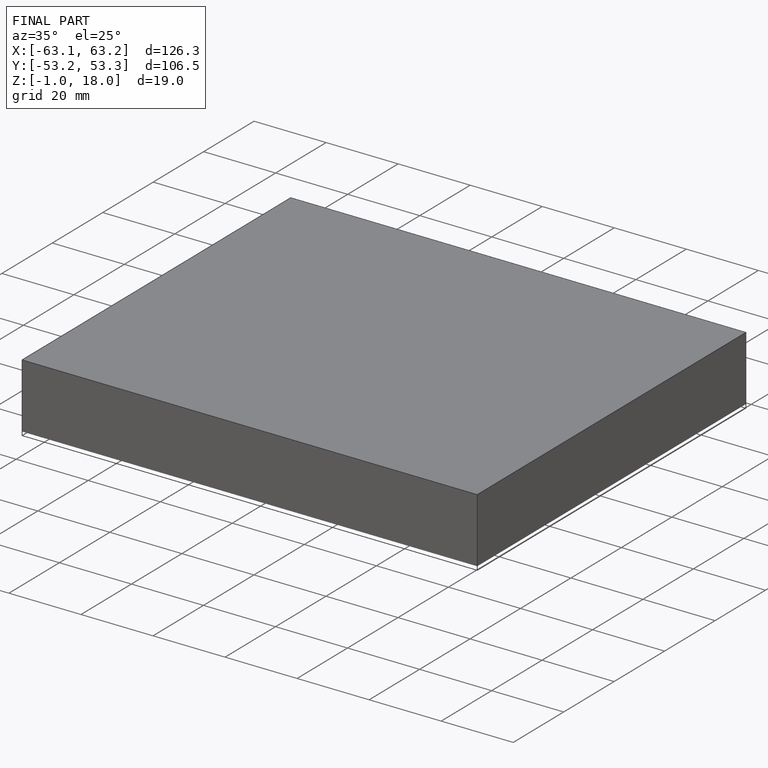
[diagram: finished part — iso view with bounding-box wireframe]
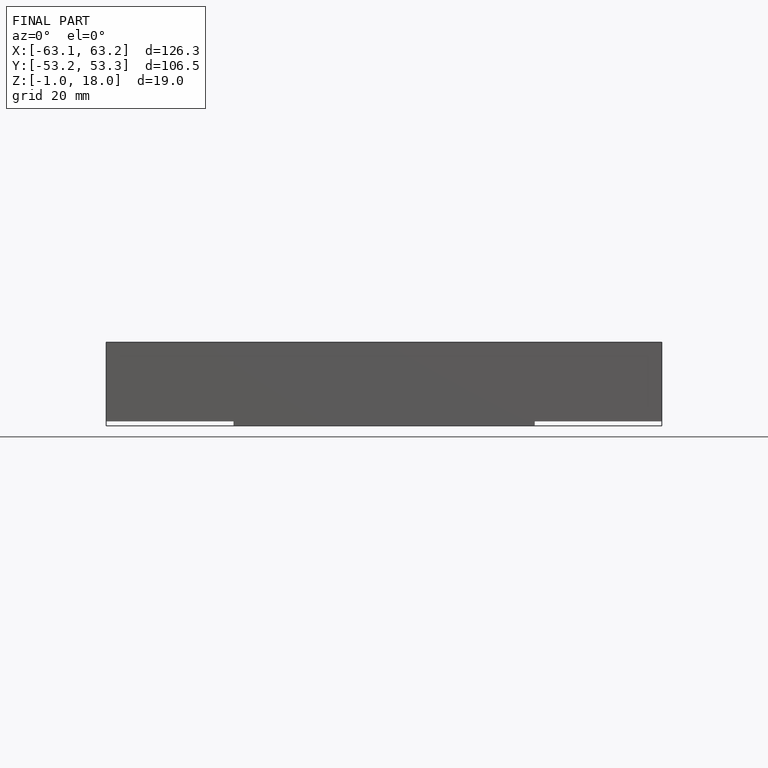
[diagram: finished part — front view with bounding-box wireframe]
